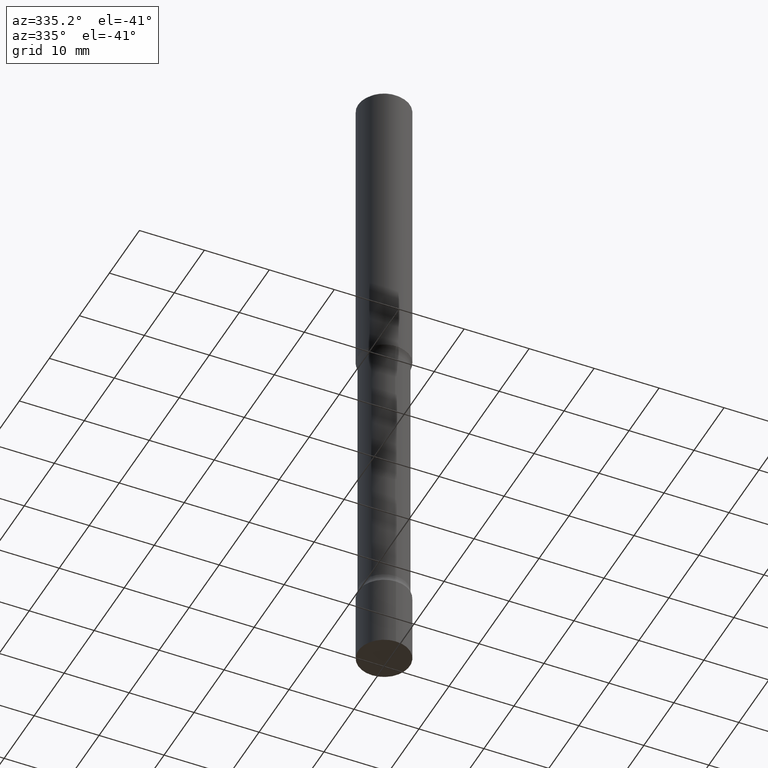
[diagram: clean part render]
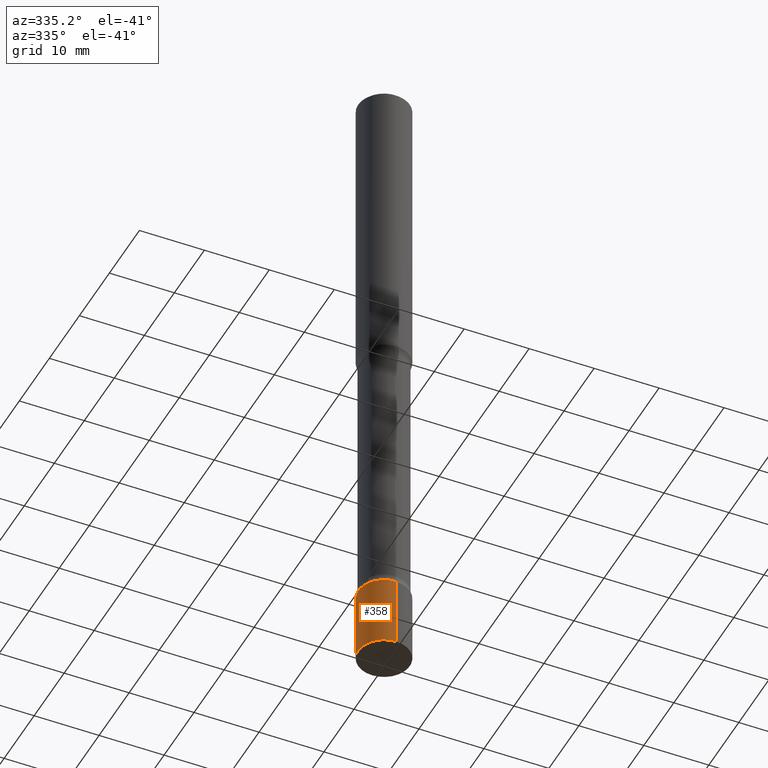
[diagram: same view with one face highlighted and labeled with its STEP entity id]
A machine part, auxiliary view. The second image highlights one B-rep face of the part: STEP entity #358.
In plain terms, the highlighted cylindrical surface (edge-blend (fillet) strip) has radius 3.9688 mm, axis along (-0, 0, 1).
Its self-contained STEP definition (entity closure, byte-faithful):
#16 = CARTESIAN_POINT ( 'NONE',  ( -1.091087918388381552E-15, -0.1562500000000140166, -3.999999999999999556 ) ) ;
#25 = EDGE_CURVE ( 'NONE', #390, #95, #149, .T. ) ;
#32 = CARTESIAN_POINT ( 'NONE',  ( 9.783217236305181094E-29, -1.396400351842947089E-14, -4.000000000000000000 ) ) ;
#35 = CARTESIAN_POINT ( 'NONE',  ( 1.110223024625249034E-15, 0.1562499999999860667, -4.000000000000000888 ) ) ;
#43 = ORIENTED_EDGE ( 'NONE', *, *, #360, .T. ) ;
#65 = VERTEX_POINT ( 'NONE', #207 ) ;
#90 = CARTESIAN_POINT ( 'NONE',  ( 1.110223024625254556E-15, 0.1562499999999876210, -3.562500000000000444 ) ) ;
#95 = VERTEX_POINT ( 'NONE', #16 ) ;
#117 = DIRECTION ( 'NONE',  ( -2.445804309076295273E-29, 3.491000879607367723E-15, 1.000000000000000000 ) ) ;
#121 = FACE_OUTER_BOUND ( 'NONE', #301, .T. ) ;
#139 = DIRECTION ( 'NONE',  ( -6.982962677686266711E-15, -1.000000000000000000, 3.496765431890256131E-15 ) ) ;
#140 = DIRECTION ( 'NONE',  ( -2.445804309076295273E-29, 3.491000879607367723E-15, 1.000000000000000000 ) ) ;
#149 = CIRCLE ( 'NONE', #439, 0.1562500000000000278 ) ;
#154 = DIRECTION ( 'NONE',  ( -2.445804309076295273E-29, 3.491000879607367329E-15, 1.000000000000000000 ) ) ;
#172 = VERTEX_POINT ( 'NONE', #90 ) ;
#205 = CYLINDRICAL_SURFACE ( 'NONE', #430, 0.1562500000000000278 ) ;
#207 = CARTESIAN_POINT ( 'NONE',  ( -1.091087918388392202E-15, -0.1562500000000124623, -3.562499999999999556 ) ) ;
#222 = AXIS2_PLACEMENT_3D ( 'NONE', #374, #336, #485 ) ;
#224 = CARTESIAN_POINT ( 'NONE',  ( 1.110223024625156540E-15, 0.1562500000000000278, -5.454688874386513423E-16 ) ) ;
#235 = ORIENTED_EDGE ( 'NONE', *, *, #493, .F. ) ;
#292 = DIRECTION ( 'NONE',  ( -6.982962677686266711E-15, -1.000000000000000000, 3.491000879607368118E-15 ) ) ;
#296 = ORIENTED_EDGE ( 'NONE', *, *, #25, .T. ) ;
#301 = EDGE_LOOP ( 'NONE', ( #235, #296, #43, #427 ) ) ;
#309 = EDGE_CURVE ( 'NONE', #172, #65, #450, .T. ) ;
#326 = LINE ( 'NONE', #447, #333 ) ;
#333 = VECTOR ( 'NONE', #434, 39.37007874015748143 ) ;
#334 = CARTESIAN_POINT ( 'NONE',  ( 0.000000000000000000, 0.000000000000000000, 0.000000000000000000 ) ) ;
#336 = DIRECTION ( 'NONE',  ( -2.445804309076295273E-29, 3.491000879607367723E-15, 1.000000000000000000 ) ) ;
#358 = ADVANCED_FACE ( 'NONE', ( #121 ), #205, .T. ) ;
#360 = EDGE_CURVE ( 'NONE', #95, #65, #326, .T. ) ;
#374 = CARTESIAN_POINT ( 'NONE',  ( 8.713177851084301071E-29, -1.243669063360124749E-14, -3.562500000000000000 ) ) ;
#386 = LINE ( 'NONE', #224, #500 ) ;
#390 = VERTEX_POINT ( 'NONE', #35 ) ;
#427 = ORIENTED_EDGE ( 'NONE', *, *, #309, .F. ) ;
#430 = AXIS2_PLACEMENT_3D ( 'NONE', #334, #140, #292 ) ;
#434 = DIRECTION ( 'NONE',  ( -2.445804309076295273E-29, 3.491000879607367329E-15, 1.000000000000000000 ) ) ;
#439 = AXIS2_PLACEMENT_3D ( 'NONE', #32, #117, #139 ) ;
#447 = CARTESIAN_POINT ( 'NONE',  ( -1.091087918388479371E-15, -0.1562500000000000278, 5.454688874386513423E-16 ) ) ;
#450 = CIRCLE ( 'NONE', #222, 0.1562500000000000278 ) ;
#485 = DIRECTION ( 'NONE',  ( -6.982962677686266711E-15, -1.000000000000000000, 3.496765431890256131E-15 ) ) ;
#493 = EDGE_CURVE ( 'NONE', #390, #172, #386, .T. ) ;
#500 = VECTOR ( 'NONE', #154, 39.37007874015748143 ) ;